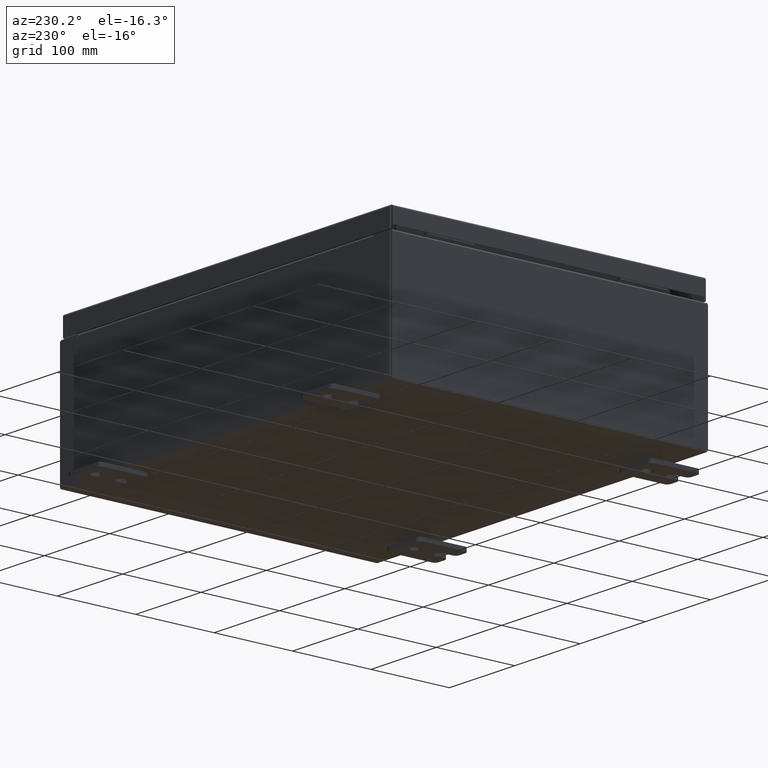
[diagram: clean part render]
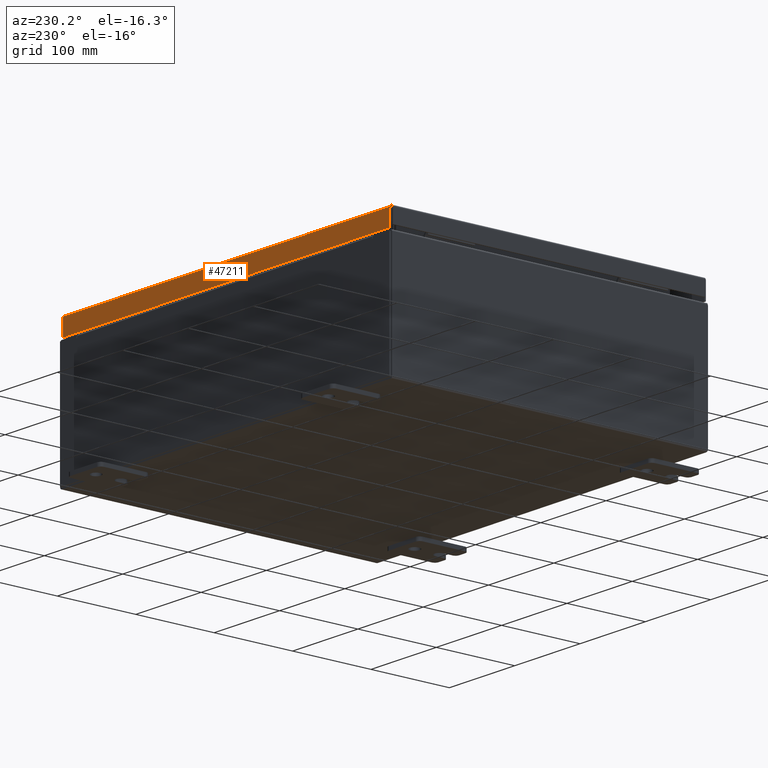
[diagram: same view with one face highlighted and labeled with its STEP entity id]
A machine part, auxiliary view. The second image highlights one B-rep face of the part: STEP entity #47211.
In plain terms, the highlighted planar face has unit normal (0, -1, -0).
Its self-contained STEP definition (entity closure, byte-faithful):
#2082 = ORIENTED_EDGE ( 'NONE', *, *, #53281, .F. ) ;
#4089 = ORIENTED_EDGE ( 'NONE', *, *, #48420, .F. ) ;
#6104 = VECTOR ( 'NONE', #21365, 39.37007874015748100 ) ;
#9643 = LINE ( 'NONE', #60545, #34126 ) ;
#11421 = DIRECTION ( 'NONE',  ( 1.000000000000000000, -8.758115402030108600E-047, 1.237063242414006300E-016 ) ) ;
#11691 = CARTESIAN_POINT ( 'NONE',  ( -9.848657864376265900, 7.937500000000000900, -0.07469999999999972500 ) ) ;
#12889 = CARTESIAN_POINT ( 'NONE',  ( 9.848657864376273000, 7.937500000000004400, -0.9376999999999997600 ) ) ;
#16369 = CARTESIAN_POINT ( 'NONE',  ( -9.937499999999998200, 7.937500000000004400, -0.9377000000000023100 ) ) ;
#17143 = VECTOR ( 'NONE', #11421, 39.37007874015748100 ) ;
#17459 = VERTEX_POINT ( 'NONE', #58225 ) ;
#18155 = VECTOR ( 'NONE', #42650, 39.37007874015748100 ) ;
#19077 = EDGE_CURVE ( 'NONE', #17459, #51473, #9643, .T. ) ;
#21365 = DIRECTION ( 'NONE',  ( -0.0000000000000000000, 3.798629886902788500E-015, -1.000000000000000000 ) ) ;
#22573 = CARTESIAN_POINT ( 'NONE',  ( 9.848657864376271200, 7.937500000000000900, 3.041243838330247400E-014 ) ) ;
#23561 = AXIS2_PLACEMENT_3D ( 'NONE', #57454, #28689, #62280 ) ;
#28689 = DIRECTION ( 'NONE',  ( 4.699145404622712900E-031, -1.000000000000000000, -3.798629886902788500E-015 ) ) ;
#29621 = LINE ( 'NONE', #22573, #18155 ) ;
#30297 = VERTEX_POINT ( 'NONE', #59452 ) ;
#33840 = EDGE_CURVE ( 'NONE', #17459, #51602, #29621, .T. ) ;
#34126 = VECTOR ( 'NONE', #41490, 39.37007874015748100 ) ;
#37120 = EDGE_LOOP ( 'NONE', ( #52523, #47793, #4089, #2082 ) ) ;
#41490 = DIRECTION ( 'NONE',  ( -1.000000000000000000, -6.787654473343917700E-031, 5.498058855173360500E-017 ) ) ;
#42650 = DIRECTION ( 'NONE',  ( 0.0000000000000000000, 3.798629886902788500E-015, -1.000000000000000000 ) ) ;
#42797 = PLANE ( 'NONE',  #23561 ) ;
#44441 = LINE ( 'NONE', #16369, #17143 ) ;
#44940 = LINE ( 'NONE', #11691, #6104 ) ;
#47211 = ADVANCED_FACE ( 'NONE', ( #55152 ), #42797, .F. ) ;
#47793 = ORIENTED_EDGE ( 'NONE', *, *, #33840, .T. ) ;
#48420 = EDGE_CURVE ( 'NONE', #30297, #51602, #44441, .T. ) ;
#51473 = VERTEX_POINT ( 'NONE', #60417 ) ;
#51602 = VERTEX_POINT ( 'NONE', #12889 ) ;
#52523 = ORIENTED_EDGE ( 'NONE', *, *, #19077, .F. ) ;
#53281 = EDGE_CURVE ( 'NONE', #51473, #30297, #44940, .T. ) ;
#55152 = FACE_OUTER_BOUND ( 'NONE', #37120, .T. ) ;
#57454 = CARTESIAN_POINT ( 'NONE',  ( -3.729946664919279000E-030, 7.937500000000000900, 3.041243838330247400E-014 ) ) ;
#58225 = CARTESIAN_POINT ( 'NONE',  ( 9.848657864376273000, 7.937500000000000900, -0.08770000000000106900 ) ) ;
#59452 = CARTESIAN_POINT ( 'NONE',  ( -9.848657864376265900, 7.937500000000004400, -0.9377000000000023100 ) ) ;
#60417 = CARTESIAN_POINT ( 'NONE',  ( -9.848657864376269400, 7.937500000000000900, -0.08770000000000052800 ) ) ;
#60545 = CARTESIAN_POINT ( 'NONE',  ( -9.937499999999998200, 7.937500000000000900, -0.08769999999999997200 ) ) ;
#62280 = DIRECTION ( 'NONE',  ( 0.0000000000000000000, 3.798629886902788500E-015, -1.000000000000000000 ) ) ;